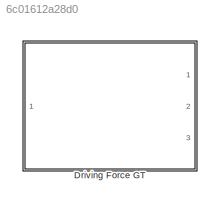
MODEL slx_6c01612a28d0
KIND library
CONFIG AbsTol = auto
CONFIG FixedStep = auto
CONFIG MaxStep = auto
CONFIG MinStep = auto
CONFIG RelTol = 1e-3
CONFIG SampleTimeConstraint = Unconstrained
CONFIG Solver = ode45
CONFIG SolverMode = Auto
CONFIG SolverName = ode45
CONFIG StartTime = 0.0
CONFIG StopTime = 10.0
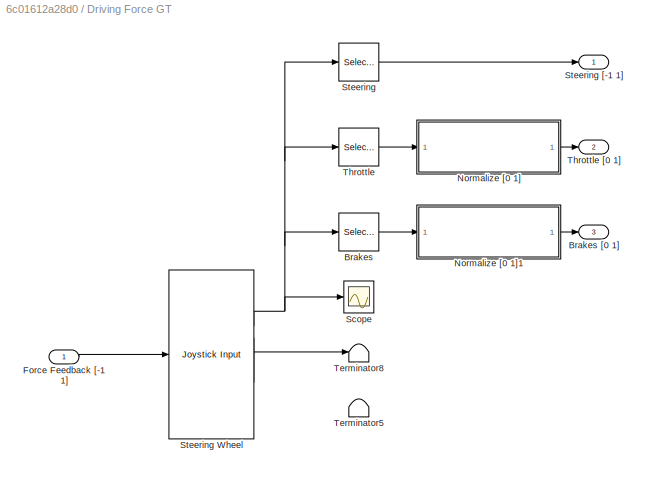
BLOCK [SubSystem] Driving Force GT
  Ports = [1, 3]
  RequestExecContextInheritance = off
BLOCK [Selector] Driving Force GT/Brakes
  Indices = [3]
  InputPortWidth = 4
  Ports = [1, 1]
BLOCK [Outport] Driving Force GT/Brakes [0 1]
  IconDisplay = Port number
  Port = 3
BLOCK [Inport] Driving Force GT/Force Feedback [-1 1]
  IconDisplay = Port number
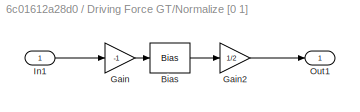
BLOCK [SubSystem] Driving Force GT/Normalize [0 1]
  Ports = [1, 1]
  RequestExecContextInheritance = off
BLOCK [Bias] Driving Force GT/Normalize [0 1]/Bias
  Bias = +1
  SaturateOnIntegerOverflow = off
BLOCK [Gain] Driving Force GT/Normalize [0 1]/Gain
  Gain = -1
  OutDataTypeStr = Inherit: Inherit via internal rule
  ParamDataTypeStr = Inherit: Inherit via internal rule
  SaturateOnIntegerOverflow = off
BLOCK [Gain] Driving Force GT/Normalize [0 1]/Gain2
  Gain = 1/2
  OutDataTypeStr = Inherit: Inherit via internal rule
  ParamDataTypeStr = Inherit: Inherit via internal rule
  SaturateOnIntegerOverflow = off
BLOCK [Inport] Driving Force GT/Normalize [0 1]/In1
  IconDisplay = Port number
BLOCK [Outport] Driving Force GT/Normalize [0 1]/Out1
  IconDisplay = Port number
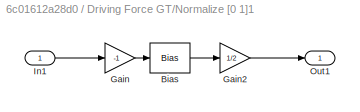
BLOCK [SubSystem] Driving Force GT/Normalize [0 1]1
  Ports = [1, 1]
  RequestExecContextInheritance = off
BLOCK [Bias] Driving Force GT/Normalize [0 1]1/Bias
  Bias = +1
  SaturateOnIntegerOverflow = off
BLOCK [Gain] Driving Force GT/Normalize [0 1]1/Gain
  Gain = -1
  OutDataTypeStr = Inherit: Inherit via internal rule
  ParamDataTypeStr = Inherit: Inherit via internal rule
  SaturateOnIntegerOverflow = off
BLOCK [Gain] Driving Force GT/Normalize [0 1]1/Gain2
  Gain = 1/2
  OutDataTypeStr = Inherit: Inherit via internal rule
  ParamDataTypeStr = Inherit: Inherit via internal rule
  SaturateOnIntegerOverflow = off
BLOCK [Inport] Driving Force GT/Normalize [0 1]1/In1
  IconDisplay = Port number
BLOCK [Outport] Driving Force GT/Normalize [0 1]1/Out1
  IconDisplay = Port number
BLOCK [Scope] Driving Force GT/Scope
  Floating = off
  NumInputPorts = 1
  Ports = [1]
  SaveName = ScopeData16
  YMax = 0
  YMin = -0.12
BLOCK [Selector] Driving Force GT/Steering
  Indices = [1]
  InputPortWidth = 4
  Ports = [1, 1]
BLOCK [Reference] Driving Force GT/Steering Wheel  REF=vrlib/Joystick Input
  Ports = [1, 2]
  SourceBlock = vrlib/Joystick Input
  SourceType = Joystick Input
  adjustports = on
  forcefeed = on
  joyid = 1
BLOCK [Outport] Driving Force GT/Steering [-1 1]
  IconDisplay = Port number
BLOCK [Terminator] Driving Force GT/Terminator5
BLOCK [Terminator] Driving Force GT/Terminator8
BLOCK [Selector] Driving Force GT/Throttle
  Indices = [2]
  InputPortWidth = 4
  Ports = [1, 1]
BLOCK [Outport] Driving Force GT/Throttle [0 1]
  IconDisplay = Port number
  Port = 2
LINE Driving Force GT/Brakes:1 -> Driving Force GT/Normalize [0 1]1:1
LINE Driving Force GT/Force Feedback [-1 1]:1 -> Driving Force GT/Steering Wheel:1
LINE Driving Force GT/Normalize [0 1]/Bias:1 -> Driving Force GT/Normalize [0 1]/Gain2:1
LINE Driving Force GT/Normalize [0 1]/Gain2:1 -> Driving Force GT/Normalize [0 1]/Out1:1
LINE Driving Force GT/Normalize [0 1]/Gain:1 -> Driving Force GT/Normalize [0 1]/Bias:1
LINE Driving Force GT/Normalize [0 1]/In1:1 -> Driving Force GT/Normalize [0 1]/Gain:1
LINE Driving Force GT/Normalize [0 1]1/Bias:1 -> Driving Force GT/Normalize [0 1]1/Gain2:1
LINE Driving Force GT/Normalize [0 1]1/Gain2:1 -> Driving Force GT/Normalize [0 1]1/Out1:1
LINE Driving Force GT/Normalize [0 1]1/Gain:1 -> Driving Force GT/Normalize [0 1]1/Bias:1
LINE Driving Force GT/Normalize [0 1]1/In1:1 -> Driving Force GT/Normalize [0 1]1/Gain:1
LINE Driving Force GT/Normalize [0 1]1:1 -> Driving Force GT/Brakes [0 1]:1
LINE Driving Force GT/Normalize [0 1]:1 -> Driving Force GT/Throttle [0 1]:1
NET Driving Force GT/Steering Wheel:1 -> Driving Force GT/Brakes:1, Driving Force GT/Scope:1, Driving Force GT/Steering:1, Driving Force GT/Throttle:1
LINE Driving Force GT/Steering Wheel:2 -> Driving Force GT/Terminator8:1
LINE Driving Force GT/Steering:1 -> Driving Force GT/Steering [-1 1]:1
LINE Driving Force GT/Throttle:1 -> Driving Force GT/Normalize [0 1]:1
note: NET lines group one-source signal fan-out (src -> all destinations, sorted); 1:1 wires keep LINE
